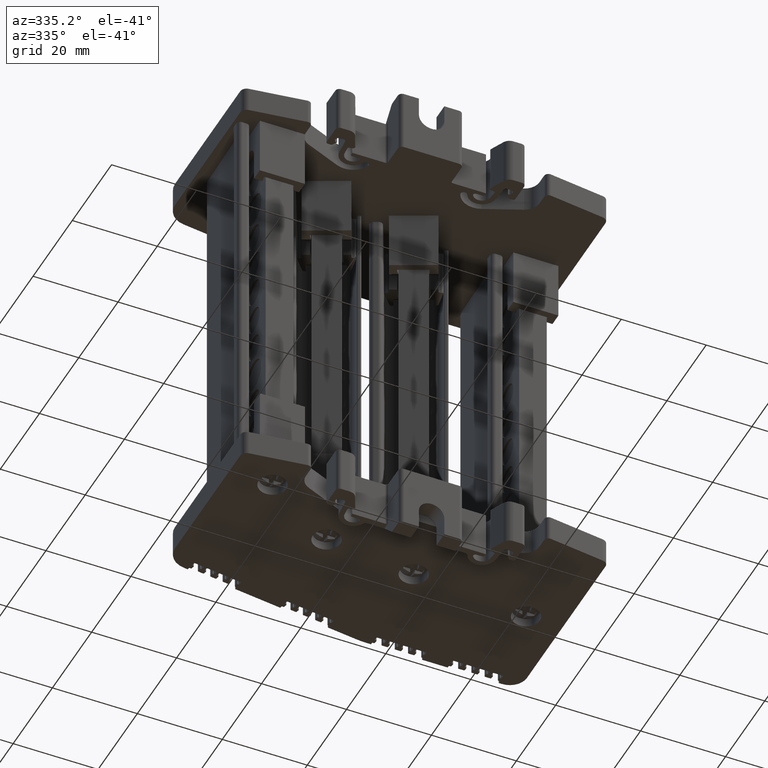
[diagram: clean part render]
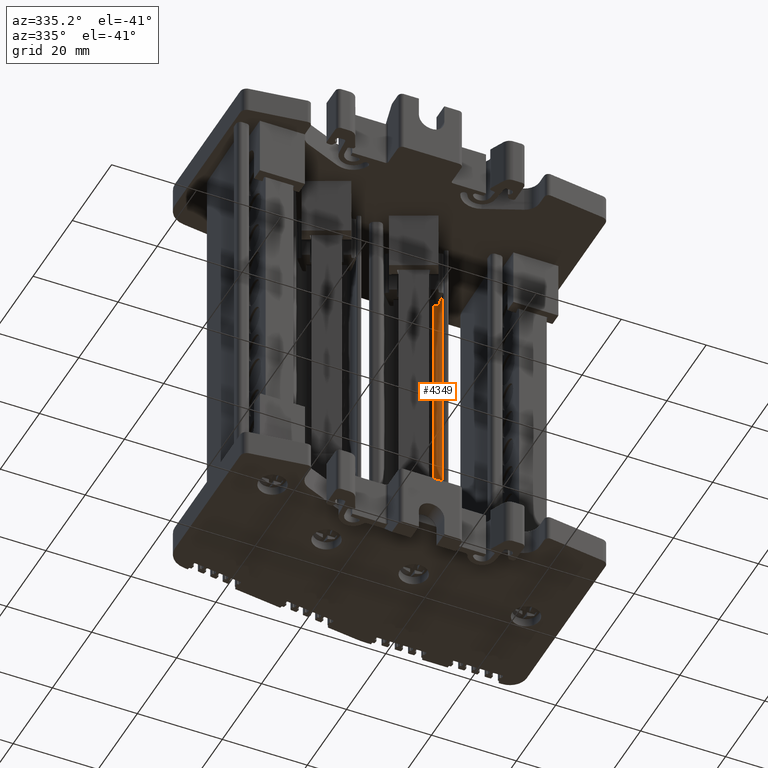
[diagram: same view with one face highlighted and labeled with its STEP entity id]
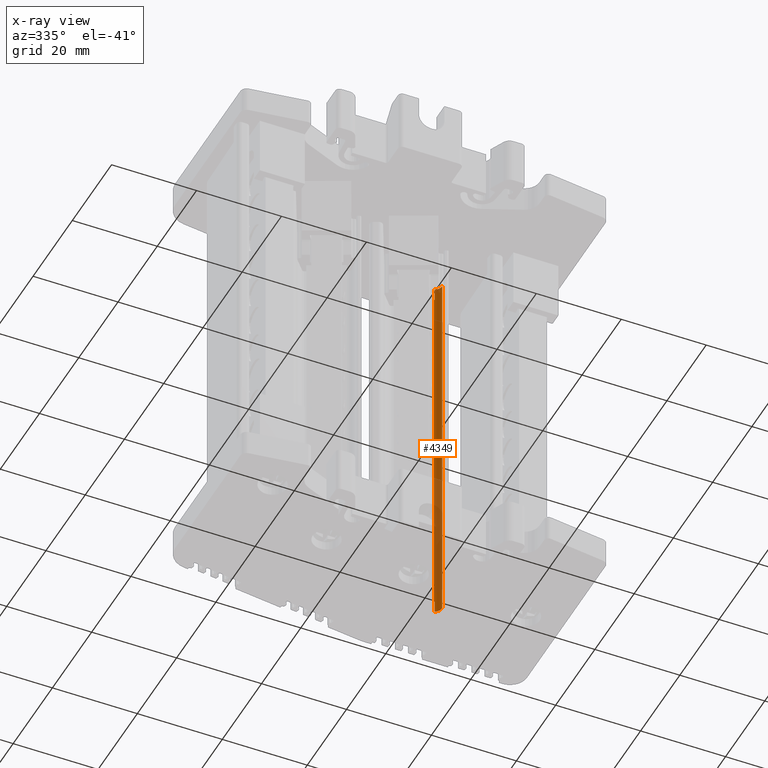
[diagram: x-ray of the same camera — body ghosted, the highlighted face saturated]
A machine part, auxiliary view. The second image highlights one B-rep face of the part: STEP entity #4349.
The next image is the same camera in x-ray: the body ghosted, the highlighted face saturated — about 36% of this face is hidden behind the body in this view.
In plain terms, the highlighted cylindrical surface (edge-blend (fillet) strip) has radius 1.9992 mm, axis along (0, -0, 1).
Its self-contained STEP definition (entity closure, byte-faithful):
#1632 = B_SPLINE_CURVE_WITH_KNOTS ( 'NONE', 3,
 ( #27650, #27746, #27780, #27790 ),
 .UNSPECIFIED., .F., .F.,
 ( 4, 4 ),
 ( 0.0000000000000000000, 1.000000000000000000 ),
 .UNSPECIFIED. ) ;
#1652 = B_SPLINE_CURVE_WITH_KNOTS ( 'NONE', 3,
 ( #27714, #27672, #27757, #27644 ),
 .UNSPECIFIED., .F., .F.,
 ( 4, 4 ),
 ( 0.0000000000000000000, 1.000000000000000000 ),
 .UNSPECIFIED. ) ;
#4349 = ADVANCED_FACE ( 'NONE', ( #109079 ), #109056, .F. ) ;
#4818 = AXIS2_PLACEMENT_3D ( 'NONE', #109004, #109083, #109021 ) ;
#7366 = EDGE_CURVE ( 'NONE', #68257, #68164, #95422, .T. ) ;
#7368 = EDGE_CURVE ( 'NONE', #68117, #68261, #27321, .T. ) ;
#7379 = EDGE_CURVE ( 'NONE', #68164, #68237, #27456, .T. ) ;
#7382 = EDGE_CURVE ( 'NONE', #68125, #68168, #27340, .T. ) ;
#7386 = EDGE_CURVE ( 'NONE', #68168, #68174, #95438, .T. ) ;
#7402 = EDGE_CURVE ( 'NONE', #68117, #68237, #1652, .T. ) ;
#7403 = EDGE_CURVE ( 'NONE', #68257, #68174, #27628, .T. ) ;
#7416 = EDGE_CURVE ( 'NONE', #68125, #68261, #1632, .T. ) ;
#27246 = DIRECTION ( 'NONE',  ( 4.611584795242911700E-013, -1.294756261916905100E-013, 1.000000000000000000 ) ) ;
#27292 = DIRECTION ( 'NONE',  ( 1.000000000000000000, 0.0000000000000000000, -4.611774521736694000E-013 ) ) ;
#27295 = CARTESIAN_POINT ( 'NONE',  ( 411.1329193543168100, -80.36006502977336700, 5.094608000013049100 ) ) ;
#27303 = DIRECTION ( 'NONE',  ( 4.611584795242911700E-013, -1.294756261916905100E-013, 1.000000000000000000 ) ) ;
#27312 = CARTESIAN_POINT ( 'NONE',  ( 411.9778357124471900, -78.54813605252687100, 5.376358000095043700 ) ) ;
#27321 = LINE ( 'NONE', #27312, #95343 ) ;
#27329 = DIRECTION ( 'NONE',  ( -4.611584795242911700E-013, 1.294756261916905100E-013, -1.000000000000000000 ) ) ;
#27336 = DIRECTION ( 'NONE',  ( 1.000000000000000000, -6.941523268841685000E-015, -4.581405357435511500E-013 ) ) ;
#27340 = LINE ( 'NONE', #27472, #95398 ) ;
#27398 = CARTESIAN_POINT ( 'NONE',  ( 412.1355744764248900, -78.63042547861474000, 5.376358000094961100 ) ) ;
#27402 = DIRECTION ( 'NONE',  ( 4.611584795242911700E-013, -1.294756261916905100E-013, 1.000000000000000000 ) ) ;
#27407 = DIRECTION ( 'NONE',  ( 4.611584795242911700E-013, -1.294756261916905100E-013, 1.000000000000000000 ) ) ;
#27456 = LINE ( 'NONE', #27398, #95355 ) ;
#27472 = CARTESIAN_POINT ( 'NONE',  ( 412.1355744762873900, -78.63042547853503100, 5.376358000094961100 ) ) ;
#27474 = CARTESIAN_POINT ( 'NONE',  ( 411.1329193543588800, -80.36006502978517600, 96.29224815083475200 ) ) ;
#27628 = LINE ( 'NONE', #27761, #95548 ) ;
#27644 = CARTESIAN_POINT ( 'NONE',  ( 412.1355744764254600, -78.63042547861469700, 7.926837927967254100 ) ) ;
#27650 = CARTESIAN_POINT ( 'NONE',  ( 412.1355744763280300, -78.63042547854644200, 93.46237807206641400 ) ) ;
#27672 = CARTESIAN_POINT ( 'NONE',  ( 412.0315659468688000, -78.57319087231215300, 7.923146758830016600 ) ) ;
#27714 = CARTESIAN_POINT ( 'NONE',  ( 411.9778357124482700, -78.54813605252736900, 7.923146512781007900 ) ) ;
#27746 = CARTESIAN_POINT ( 'NONE',  ( 412.0842165991807600, -78.60065381974136800, 93.46483876946575700 ) ) ;
#27750 = DIRECTION ( 'NONE',  ( 4.611584795242911700E-013, -1.294756261916905100E-013, 1.000000000000000000 ) ) ;
#27757 = CARTESIAN_POINT ( 'NONE',  ( 412.0842166017722500, -78.60065382125002000, 7.924377230558691900 ) ) ;
#27761 = CARTESIAN_POINT ( 'NONE',  ( 413.1321617785421300, -80.36006502977340900, 5.376358000094277200 ) ) ;
#27780 = CARTESIAN_POINT ( 'NONE',  ( 412.0315659442023300, -78.57319087106142800, 93.46606924119201700 ) ) ;
#27790 = CARTESIAN_POINT ( 'NONE',  ( 411.9778357124880000, -78.54813605253855300, 93.46606948724523500 ) ) ;
#68117 = VERTEX_POINT ( 'NONE', #76531 ) ;
#68125 = VERTEX_POINT ( 'NONE', #76572 ) ;
#68164 = VERTEX_POINT ( 'NONE', #76686 ) ;
#68168 = VERTEX_POINT ( 'NONE', #76699 ) ;
#68174 = VERTEX_POINT ( 'NONE', #76602 ) ;
#68237 = VERTEX_POINT ( 'NONE', #76833 ) ;
#68257 = VERTEX_POINT ( 'NONE', #76880 ) ;
#68261 = VERTEX_POINT ( 'NONE', #76902 ) ;
#68441 = ORIENTED_EDGE ( 'NONE', *, *, #7379, .F. ) ;
#68455 = ORIENTED_EDGE ( 'NONE', *, *, #7402, .T. ) ;
#68481 = ORIENTED_EDGE ( 'NONE', *, *, #7368, .F. ) ;
#68543 = ORIENTED_EDGE ( 'NONE', *, *, #7382, .F. ) ;
#68631 = ORIENTED_EDGE ( 'NONE', *, *, #7386, .F. ) ;
#68645 = ORIENTED_EDGE ( 'NONE', *, *, #7416, .T. ) ;
#70046 = ORIENTED_EDGE ( 'NONE', *, *, #7403, .T. ) ;
#70130 = ORIENTED_EDGE ( 'NONE', *, *, #7366, .F. ) ;
#76531 = CARTESIAN_POINT ( 'NONE',  ( 411.9778357124482700, -78.54813605252736900, 7.923146512781007900 ) ) ;
#76572 = CARTESIAN_POINT ( 'NONE',  ( 412.1355744763280300, -78.63042547854644200, 93.46237807206641400 ) ) ;
#76602 = CARTESIAN_POINT ( 'NONE',  ( 413.1321617785840200, -80.36006502977926400, 96.29224815083384200 ) ) ;
#76686 = CARTESIAN_POINT ( 'NONE',  ( 412.1355744764248900, -78.63042547861474000, 5.094608000012292400 ) ) ;
#76699 = CARTESIAN_POINT ( 'NONE',  ( 412.1355744763272900, -78.63042547854563200, 96.29224815083445300 ) ) ;
#76833 = CARTESIAN_POINT ( 'NONE',  ( 412.1355744764254600, -78.63042547861469700, 7.926837927967254100 ) ) ;
#76880 = CARTESIAN_POINT ( 'NONE',  ( 413.1321617785420100, -80.36006502977926400, 5.094608000012127200 ) ) ;
#76902 = CARTESIAN_POINT ( 'NONE',  ( 411.9778357124880000, -78.54813605253855300, 93.46606948724523500 ) ) ;
#95343 = VECTOR ( 'NONE', #27246, 1000.000000000000000 ) ;
#95355 = VECTOR ( 'NONE', #27402, 1000.000000000000000 ) ;
#95387 = AXIS2_PLACEMENT_3D ( 'NONE', #27295, #27303, #27292 ) ;
#95398 = VECTOR ( 'NONE', #27407, 1000.000000000000000 ) ;
#95422 = CIRCLE ( 'NONE', #95387, 1.999242424225167200 ) ;
#95436 = AXIS2_PLACEMENT_3D ( 'NONE', #27474, #27329, #27336 ) ;
#95438 = CIRCLE ( 'NONE', #95436, 1.999242424225167200 ) ;
#95548 = VECTOR ( 'NONE', #27750, 1000.000000000000000 ) ;
#97813 = EDGE_LOOP ( 'NONE', ( #70130, #70046, #68631, #68543, #68645, #68481, #68455, #68441 ) ) ;
#109004 = CARTESIAN_POINT ( 'NONE',  ( 411.1329193543169300, -80.36006502977340900, 5.376358000095199200 ) ) ;
#109021 = DIRECTION ( 'NONE',  ( 1.000000000000000000, 0.0000000000000000000, -4.611774521736694000E-013 ) ) ;
#109056 = CYLINDRICAL_SURFACE ( 'NONE', #4818, 1.999242424225167200 ) ;
#109079 = FACE_OUTER_BOUND ( 'NONE', #97813, .T. ) ;
#109083 = DIRECTION ( 'NONE',  ( 4.611584795242911700E-013, -1.294756261916905100E-013, 1.000000000000000000 ) ) ;